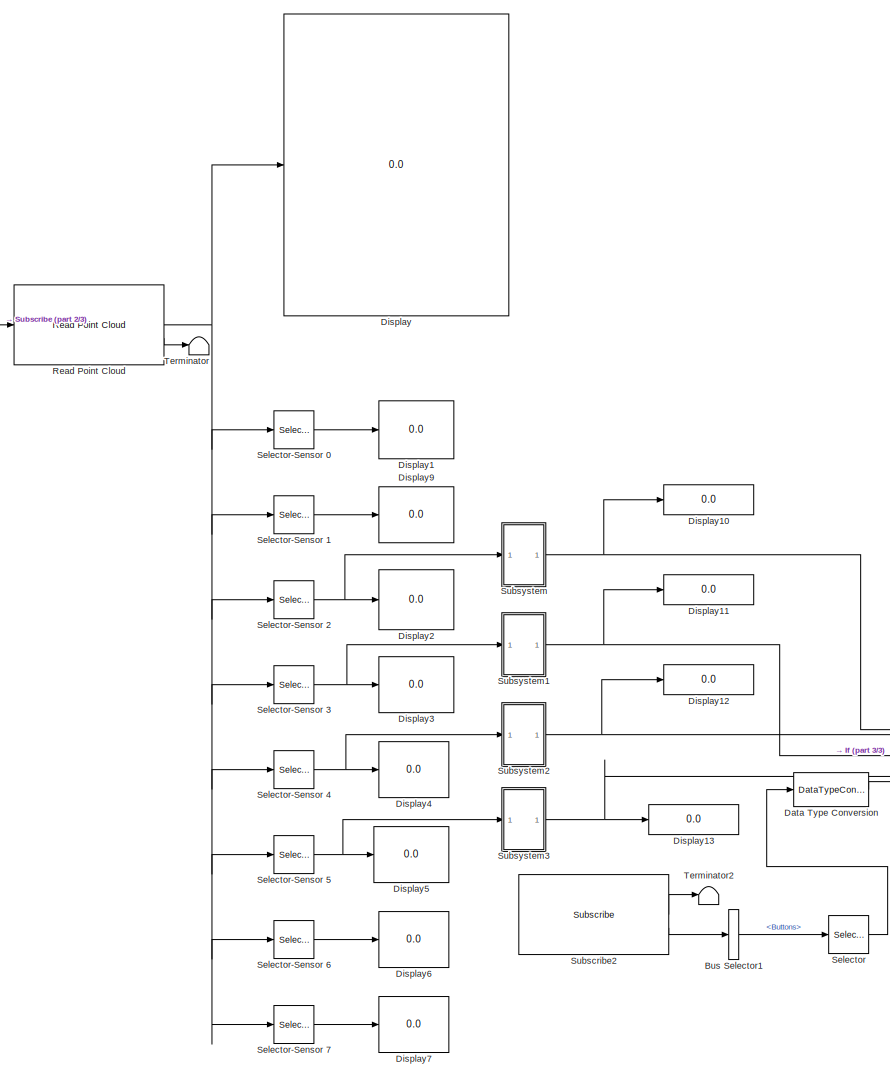
[diagram: root canvas - part 1/3, left side, full height]
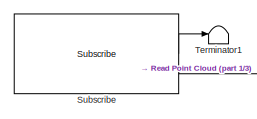
[diagram: root canvas - part 2/3, top left region]
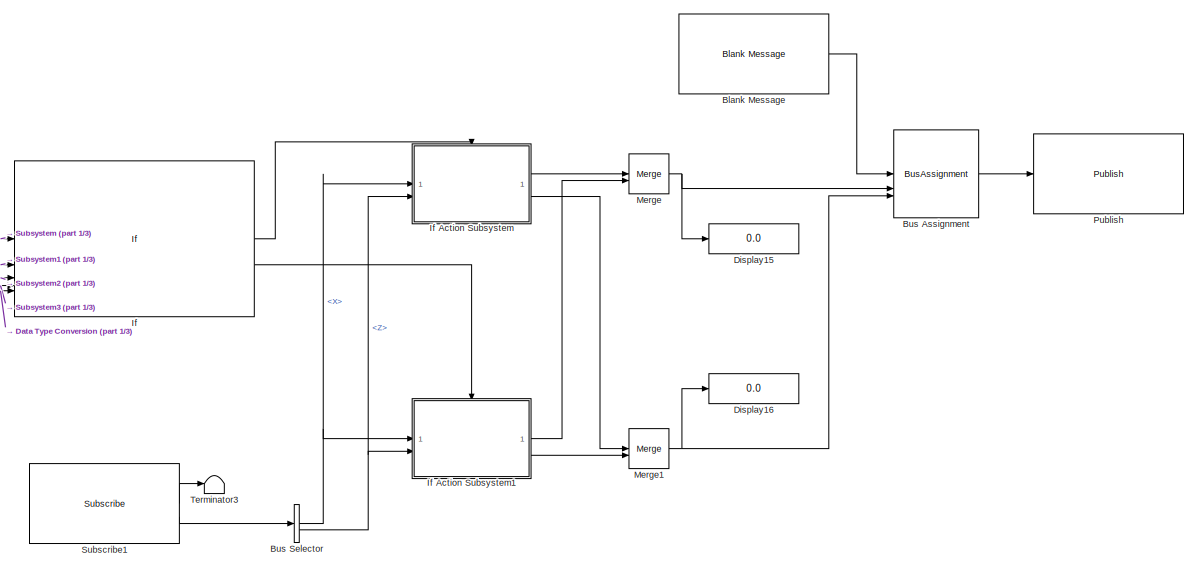
[diagram: root canvas - part 3/3, bottom right region]
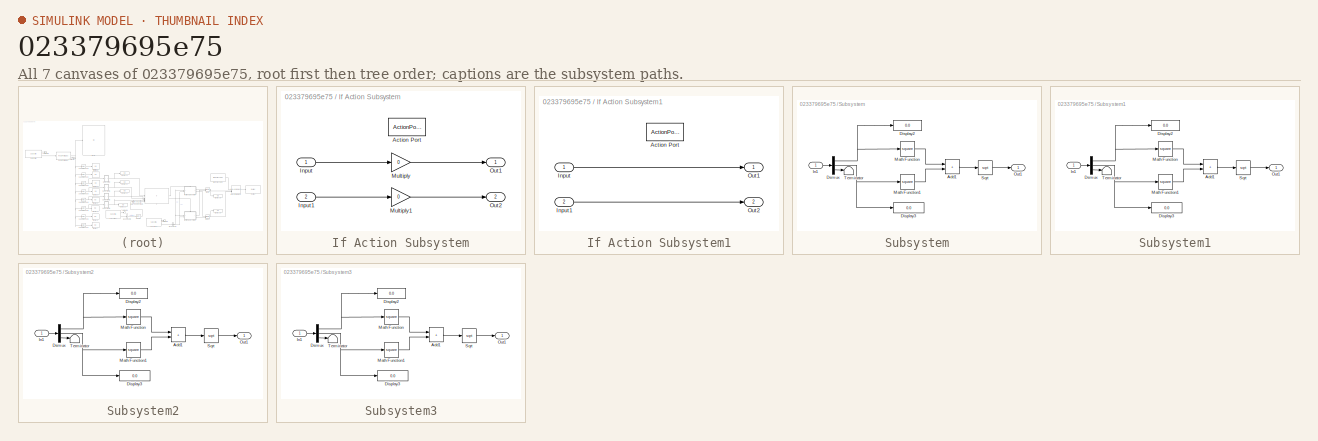
[diagram: thumbnail index - all 7 canvases of the model, root first then tree order]
MODEL slx_023379695e75
KIND model
CONFIG AbsTol = auto
CONFIG EnableMultiTasking = off
CONFIG FixedStep = auto
CONFIG MaxStep = auto
CONFIG MinStep = auto
CONFIG RelTol = 1e-3
CONFIG SampleTimeConstraint = Unconstrained
CONFIG SolverName = FixedStepAuto
CONFIG StartTime = 0.0
CONFIG StopTime = inf
WORKSPACE source: mxarray member
WORKSPACE Logfile_Data_Object: robotics.ros.BagSelection (value not decoded)
WORKSPACE Logfile_Path = '<path>'
WORKSPACE Logfile_Playback_Duration = nan
WORKSPACE Logfile_Playback_Offset = nan
WORKSPACE SL_ROS_VariableLengthArrays_MaxSizes: object (value not decoded)
BLOCK [Reference] Blank Message  REF=robotlib/Blank Message
  LibrarySourceBlock = roslib/ROS/Blank Message
  SourceBlock = robotlib/Blank Message
  SourceType = ROS Blank Message
BLOCK [BusAssignment] Bus Assignment
  AssignedSignals = Linear.X,Angular.Z
BLOCK [BusSelector] Bus Selector
  OutputSignals = Linear.X,Angular.Z
BLOCK [BusSelector] Bus Selector1
  OutputSignals = Buttons
BLOCK [DataTypeConversion] Data Type Conversion
  OutDataTypeStr = single
  RndMeth = Floor
  SaturateOnIntegerOverflow = off
BLOCK [Display] Display
  Decimation = 1
BLOCK [Display] Display1
  Decimation = 1
BLOCK [Display] Display10
  Decimation = 1
BLOCK [Display] Display11
  Decimation = 1
BLOCK [Display] Display12
  Decimation = 1
BLOCK [Display] Display13
  Decimation = 1
BLOCK [Display] Display15
  Decimation = 1
BLOCK [Display] Display16
  Decimation = 1
BLOCK [Display] Display2
  Decimation = 1
BLOCK [Display] Display3
  Decimation = 1
BLOCK [Display] Display4
  Decimation = 1
BLOCK [Display] Display5
  Decimation = 1
BLOCK [Display] Display6
  Decimation = 1
BLOCK [Display] Display7
  Decimation = 1
BLOCK [Display] Display9
  Decimation = 1
BLOCK [If] If
  IfExpression = (u1 <1.5|u2 <1.5|u3 <1.5|u4 <1.5)&(u5==0)
  NumInputs = 5
BLOCK [SubSystem] If Action Subsystem
  TreatAsAtomicUnit = on
BLOCK [ActionPort] If Action Subsystem/Action Port
  ActionPortLabel = if((u1 <2|u2 <2|u3 <2|u4 <2)&(u5==0))
BLOCK [Inport] If Action Subsystem/Input
BLOCK [Inport] If Action Subsystem/Input1
  Port = 2
BLOCK [Gain] If Action Subsystem/Multiply
  Gain = 0
BLOCK [Gain] If Action Subsystem/Multiply1
  Gain = 0
BLOCK [Outport] If Action Subsystem/Out1
BLOCK [Outport] If Action Subsystem/Out2
  Port = 2
BLOCK [SubSystem] If Action Subsystem1
  TreatAsAtomicUnit = on
BLOCK [ActionPort] If Action Subsystem1/Action Port
  ActionPortLabel = else
BLOCK [Inport] If Action Subsystem1/Input
BLOCK [Inport] If Action Subsystem1/Input1
  Port = 2
BLOCK [Outport] If Action Subsystem1/Out1
BLOCK [Outport] If Action Subsystem1/Out2
  Port = 2
BLOCK [Merge] Merge
BLOCK [Merge] Merge1
BLOCK [Reference] Publish  REF=robotlib/Publish
  LibrarySourceBlock = roslib/ROS/Publish
  SourceBlock = robotlib/Publish
  SourceType = ROS Publish
BLOCK [Reference] Read Point Cloud  REF=robotlib/Read Point Cloud
  LibrarySourceBlock = roslib/ROS/Read Point Cloud
  SourceBlock = robotlib/Read Point Cloud
  SourceType = ros.slros.internal.block.ReadPointCloud
BLOCK [Selector] Selector
  IndexOptions = Starting index (dialog),Starting index (dialog)
  Indices = 1,5
  InputPortWidth = 3
  NumberOfDimensions = 2
  OutputSizes = 1,1
BLOCK [Selector] Selector-Sensor 0
  IndexMode = Zero-based
  IndexOptions = Starting index (dialog),Starting index (dialog)
  Indices = 0,0
  InputPortWidth = 8
  NumberOfDimensions = 2
  OutputSizes = 1,3
BLOCK [Selector] Selector-Sensor 1
  IndexMode = Zero-based
  IndexOptions = Starting index (dialog),Starting index (dialog)
  Indices = 1,0
  InputPortWidth = 6
  NumberOfDimensions = 2
  OutputSizes = 1,3
BLOCK [Selector] Selector-Sensor 2
  IndexMode = Zero-based
  IndexOptions = Starting index (dialog),Starting index (dialog)
  Indices = 2,0
  InputPortWidth = 6
  NumberOfDimensions = 2
  OutputSizes = 1,3
BLOCK [Selector] Selector-Sensor 3
  IndexMode = Zero-based
  IndexOptions = Starting index (dialog),Starting index (dialog)
  Indices = 3,0
  InputPortWidth = 6
  NumberOfDimensions = 2
  OutputSizes = 1,3
BLOCK [Selector] Selector-Sensor 4
  IndexMode = Zero-based
  IndexOptions = Starting index (dialog),Starting index (dialog)
  Indices = 4,0
  InputPortWidth = 6
  NumberOfDimensions = 2
  OutputSizes = 1,3
BLOCK [Selector] Selector-Sensor 5
  IndexMode = Zero-based
  IndexOptions = Starting index (dialog),Starting index (dialog)
  Indices = 5,0
  InputPortWidth = 6
  NumberOfDimensions = 2
  OutputSizes = 1,3
BLOCK [Selector] Selector-Sensor 6
  IndexMode = Zero-based
  IndexOptions = Starting index (dialog),Starting index (dialog)
  Indices = 6,0
  InputPortWidth = 7
  NumberOfDimensions = 2
  OutputSizes = 1,3
BLOCK [Selector] Selector-Sensor 7
  IndexMode = Zero-based
  IndexOptions = Starting index (dialog),Starting index (dialog)
  Indices = 7,0
  InputPortWidth = 7
  NumberOfDimensions = 2
  OutputSizes = 1,3
BLOCK [Reference] Subscribe  REF=robotlib/Subscribe
  LibrarySourceBlock = roslib/ROS/Subscribe
  SourceBlock = robotlib/Subscribe
  SourceType = ROS Subscribe
BLOCK [Reference] Subscribe1  REF=robotlib/Subscribe
  LibrarySourceBlock = roslib/ROS/Subscribe
  SourceBlock = robotlib/Subscribe
  SourceType = ROS Subscribe
BLOCK [Reference] Subscribe2  REF=robotlib/Subscribe
  LibrarySourceBlock = roslib/ROS/Subscribe
  SourceBlock = robotlib/Subscribe
  SourceType = ROS Subscribe
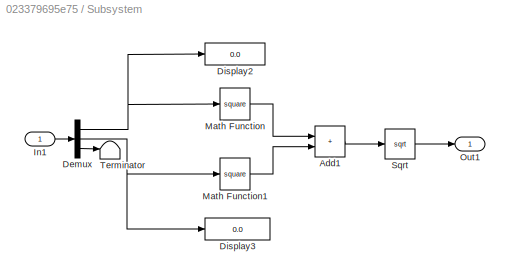
BLOCK [SubSystem] Subsystem
BLOCK [Sum] Subsystem/Add1
  IconShape = rectangular
BLOCK [Demux] Subsystem/Demux
  Outputs = 3
BLOCK [Display] Subsystem/Display2
  Decimation = 1
BLOCK [Display] Subsystem/Display3
  Decimation = 1
BLOCK [Inport] Subsystem/In1
BLOCK [Math] Subsystem/Math Function
  Operator = square
BLOCK [Math] Subsystem/Math Function1
  Operator = square
BLOCK [Outport] Subsystem/Out1
BLOCK [Sqrt] Subsystem/Sqrt
BLOCK [Terminator] Subsystem/Terminator
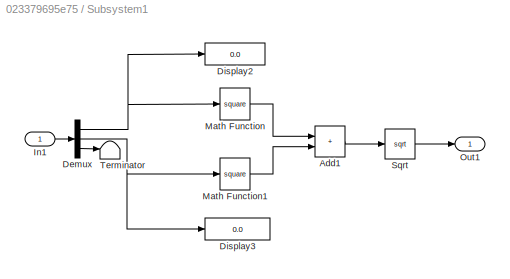
BLOCK [SubSystem] Subsystem1
BLOCK [Sum] Subsystem1/Add1
  IconShape = rectangular
BLOCK [Demux] Subsystem1/Demux
  Outputs = 3
BLOCK [Display] Subsystem1/Display2
  Decimation = 1
BLOCK [Display] Subsystem1/Display3
  Decimation = 1
BLOCK [Inport] Subsystem1/In1
BLOCK [Math] Subsystem1/Math Function
  Operator = square
BLOCK [Math] Subsystem1/Math Function1
  Operator = square
BLOCK [Outport] Subsystem1/Out1
BLOCK [Sqrt] Subsystem1/Sqrt
BLOCK [Terminator] Subsystem1/Terminator
BLOCK [SubSystem] Subsystem2
BLOCK [Sum] Subsystem2/Add1
  IconShape = rectangular
BLOCK [Demux] Subsystem2/Demux
  Outputs = 3
BLOCK [Display] Subsystem2/Display2
  Decimation = 1
BLOCK [Display] Subsystem2/Display3
  Decimation = 1
BLOCK [Inport] Subsystem2/In1
BLOCK [Math] Subsystem2/Math Function
  Operator = square
BLOCK [Math] Subsystem2/Math Function1
  Operator = square
BLOCK [Outport] Subsystem2/Out1
BLOCK [Sqrt] Subsystem2/Sqrt
BLOCK [Terminator] Subsystem2/Terminator
BLOCK [SubSystem] Subsystem3
BLOCK [Sum] Subsystem3/Add1
  IconShape = rectangular
BLOCK [Demux] Subsystem3/Demux
  Outputs = 3
BLOCK [Display] Subsystem3/Display2
  Decimation = 1
BLOCK [Display] Subsystem3/Display3
  Decimation = 1
BLOCK [Inport] Subsystem3/In1
BLOCK [Math] Subsystem3/Math Function
  Operator = square
BLOCK [Math] Subsystem3/Math Function1
  Operator = square
BLOCK [Outport] Subsystem3/Out1
BLOCK [Sqrt] Subsystem3/Sqrt
BLOCK [Terminator] Subsystem3/Terminator
BLOCK [Terminator] Terminator
BLOCK [Terminator] Terminator1
BLOCK [Terminator] Terminator2
BLOCK [Terminator] Terminator3
LINE Blank Message:1 -> Bus Assignment:1
LINE Bus Assignment:1 -> Publish:1
LINE Bus Selector1:1 -> Selector:1
NET Bus Selector:1 -> If Action Subsystem1:1, If Action Subsystem:1
NET Bus Selector:2 -> If Action Subsystem1:2, If Action Subsystem:2
LINE Data Type Conversion:1 -> If:5
LINE If Action Subsystem/Input1:1 -> If Action Subsystem/Multiply1:1
LINE If Action Subsystem/Input:1 -> If Action Subsystem/Multiply:1
LINE If Action Subsystem/Multiply1:1 -> If Action Subsystem/Out2:1
LINE If Action Subsystem/Multiply:1 -> If Action Subsystem/Out1:1
LINE If Action Subsystem1/Input1:1 -> If Action Subsystem1/Out2:1
LINE If Action Subsystem1/Input:1 -> If Action Subsystem1/Out1:1
LINE If Action Subsystem1:1 -> Merge:2
LINE If Action Subsystem1:2 -> Merge1:2
LINE If Action Subsystem:1 -> Merge:1
LINE If Action Subsystem:2 -> Merge1:1
LINE If:1 -> If Action Subsystem:ifaction
LINE If:2 -> If Action Subsystem1:ifaction
NET Merge1:1 -> Bus Assignment:3, Display16:1
NET Merge:1 -> Bus Assignment:2, Display15:1
NET Read Point Cloud:1 -> Display:1, Selector-Sensor 0:1, Selector-Sensor 1:1, Selector-Sensor 2:1, Selector-Sensor 3:1, Selector-Sensor 4:1, Selector-Sensor 5:1, Selector-Sensor 6:1, Selector-Sensor 7:1
LINE Read Point Cloud:2 -> Terminator:1
LINE Selector-Sensor 0:1 -> Display1:1
LINE Selector-Sensor 1:1 -> Display9:1
NET Selector-Sensor 2:1 -> Display2:1, Subsystem:1
NET Selector-Sensor 3:1 -> Display3:1, Subsystem1:1
NET Selector-Sensor 4:1 -> Display4:1, Subsystem2:1
NET Selector-Sensor 5:1 -> Display5:1, Subsystem3:1
LINE Selector-Sensor 6:1 -> Display6:1
LINE Selector-Sensor 7:1 -> Display7:1
LINE Selector:1 -> Data Type Conversion:1
LINE Subscribe1:1 -> Terminator3:1
LINE Subscribe1:2 -> Bus Selector:1
LINE Subscribe2:1 -> Terminator2:1
LINE Subscribe2:2 -> Bus Selector1:1
LINE Subscribe:1 -> Terminator1:1
LINE Subscribe:2 -> Read Point Cloud:1
LINE Subsystem/Add1:1 -> Subsystem/Sqrt:1
NET Subsystem/Demux:1 -> Subsystem/Display2:1, Subsystem/Math Function:1
NET Subsystem/Demux:2 -> Subsystem/Display3:1, Subsystem/Math Function1:1
LINE Subsystem/Demux:3 -> Subsystem/Terminator:1
LINE Subsystem/In1:1 -> Subsystem/Demux:1
LINE Subsystem/Math Function1:1 -> Subsystem/Add1:2
LINE Subsystem/Math Function:1 -> Subsystem/Add1:1
LINE Subsystem/Sqrt:1 -> Subsystem/Out1:1
LINE Subsystem1/Add1:1 -> Subsystem1/Sqrt:1
NET Subsystem1/Demux:1 -> Subsystem1/Display2:1, Subsystem1/Math Function:1
NET Subsystem1/Demux:2 -> Subsystem1/Display3:1, Subsystem1/Math Function1:1
LINE Subsystem1/Demux:3 -> Subsystem1/Terminator:1
LINE Subsystem1/In1:1 -> Subsystem1/Demux:1
LINE Subsystem1/Math Function1:1 -> Subsystem1/Add1:2
LINE Subsystem1/Math Function:1 -> Subsystem1/Add1:1
LINE Subsystem1/Sqrt:1 -> Subsystem1/Out1:1
NET Subsystem1:1 -> Display11:1, If:2
LINE Subsystem2/Add1:1 -> Subsystem2/Sqrt:1
NET Subsystem2/Demux:1 -> Subsystem2/Display2:1, Subsystem2/Math Function:1
NET Subsystem2/Demux:2 -> Subsystem2/Display3:1, Subsystem2/Math Function1:1
LINE Subsystem2/Demux:3 -> Subsystem2/Terminator:1
LINE Subsystem2/In1:1 -> Subsystem2/Demux:1
LINE Subsystem2/Math Function1:1 -> Subsystem2/Add1:2
LINE Subsystem2/Math Function:1 -> Subsystem2/Add1:1
LINE Subsystem2/Sqrt:1 -> Subsystem2/Out1:1
NET Subsystem2:1 -> Display12:1, If:3
LINE Subsystem3/Add1:1 -> Subsystem3/Sqrt:1
NET Subsystem3/Demux:1 -> Subsystem3/Display2:1, Subsystem3/Math Function:1
NET Subsystem3/Demux:2 -> Subsystem3/Display3:1, Subsystem3/Math Function1:1
LINE Subsystem3/Demux:3 -> Subsystem3/Terminator:1
LINE Subsystem3/In1:1 -> Subsystem3/Demux:1
LINE Subsystem3/Math Function1:1 -> Subsystem3/Add1:2
LINE Subsystem3/Math Function:1 -> Subsystem3/Add1:1
LINE Subsystem3/Sqrt:1 -> Subsystem3/Out1:1
NET Subsystem3:1 -> Display13:1, If:4
NET Subsystem:1 -> Display10:1, If:1
note: NET lines group one-source signal fan-out (src -> all destinations, sorted); 1:1 wires keep LINE
